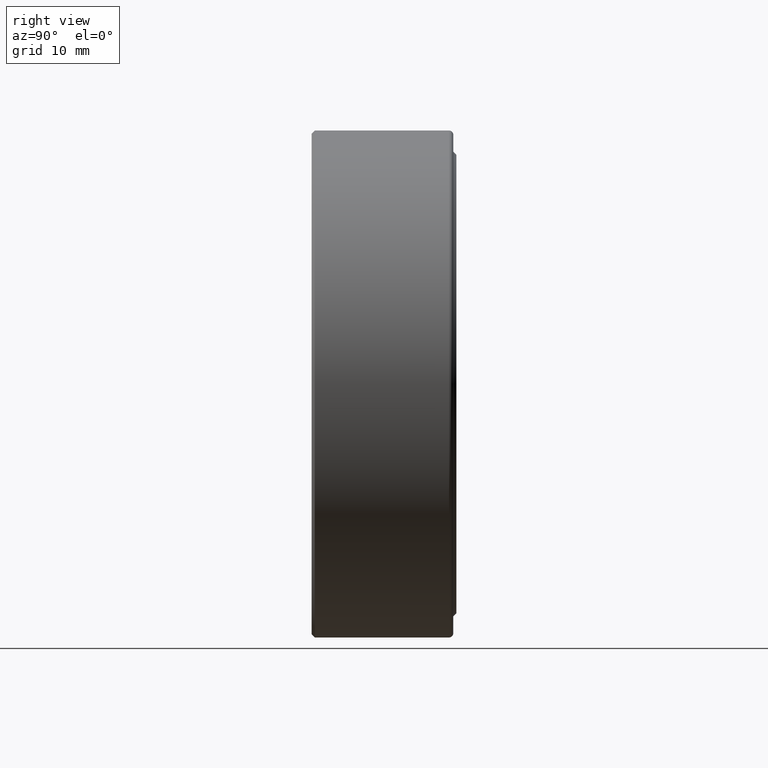
[diagram: clean part render]
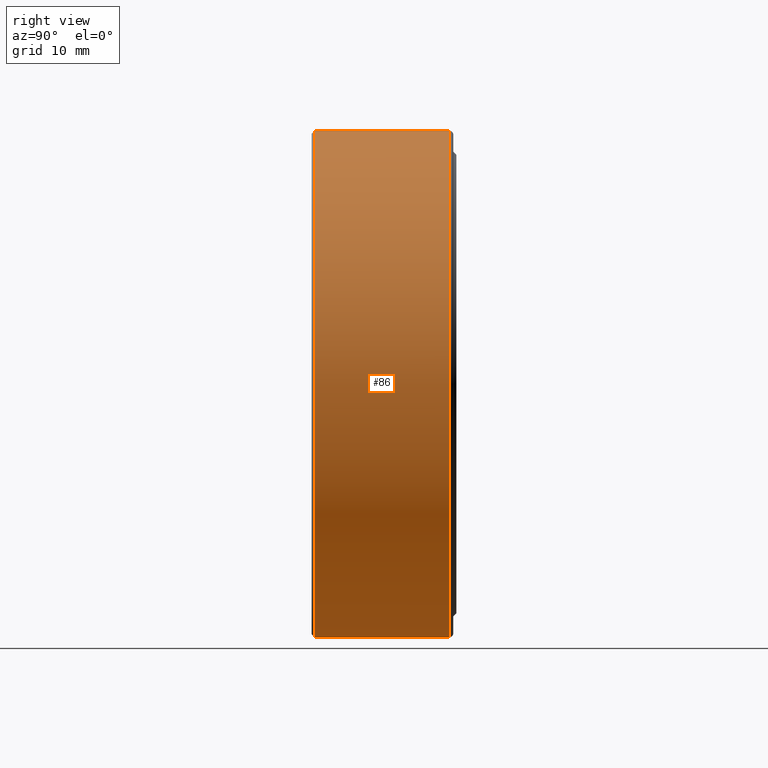
[diagram: same view with one face highlighted and labeled with its STEP entity id]
A machine part, right view. The second image highlights one B-rep face of the part: STEP entity #86.
In plain terms, the highlighted cylindrical surface (bore or boss wall) has radius 30.5594 mm, axis along (-0, 1, -0).
Its self-contained STEP definition (entity closure, byte-faithful):
#34 = EDGE_LOOP ( 'NONE', ( #174 ) ) ;
#54 = CIRCLE ( 'NONE', #492, 1.203125000000000000 ) ;
#81 = DIRECTION ( 'NONE',  ( -0.0000000000000000000, 1.000000000000000000, -0.0000000000000000000 ) ) ;
#85 = CARTESIAN_POINT ( 'NONE',  ( 0.0000000000000000000, 0.6524999999999997500, 0.0000000000000000000 ) ) ;
#86 = ADVANCED_FACE ( 'NONE', ( #432, #362 ), #92, .T. ) ;
#92 = CYLINDRICAL_SURFACE ( 'NONE', #314, 1.203125000000000000 ) ;
#164 = DIRECTION ( 'NONE',  ( 0.0000000000000000000, 0.0000000000000000000, 1.000000000000000000 ) ) ;
#174 = ORIENTED_EDGE ( 'NONE', *, *, #393, .T. ) ;
#180 = CARTESIAN_POINT ( 'NONE',  ( 0.0000000000000000000, 0.01499999999999997700, 0.0000000000000000000 ) ) ;
#198 = CARTESIAN_POINT ( 'NONE',  ( 0.0000000000000000000, 0.6524999999999997500, 1.203125000000000000 ) ) ;
#230 = ORIENTED_EDGE ( 'NONE', *, *, #333, .F. ) ;
#266 = DIRECTION ( 'NONE',  ( -0.0000000000000000000, 1.000000000000000000, -0.0000000000000000000 ) ) ;
#269 = DIRECTION ( 'NONE',  ( 0.0000000000000000000, 0.0000000000000000000, 1.000000000000000000 ) ) ;
#270 = AXIS2_PLACEMENT_3D ( 'NONE', #180, #81, #418 ) ;
#279 = DIRECTION ( 'NONE',  ( -0.0000000000000000000, 1.000000000000000000, -0.0000000000000000000 ) ) ;
#314 = AXIS2_PLACEMENT_3D ( 'NONE', #385, #279, #164 ) ;
#333 = EDGE_CURVE ( 'NONE', #518, #518, #54, .T. ) ;
#335 = EDGE_LOOP ( 'NONE', ( #230 ) ) ;
#342 = CIRCLE ( 'NONE', #270, 1.203125000000000000 ) ;
#362 = FACE_OUTER_BOUND ( 'NONE', #34, .T. ) ;
#385 = CARTESIAN_POINT ( 'NONE',  ( 0.0000000000000000000, 0.0000000000000000000, 0.0000000000000000000 ) ) ;
#393 = EDGE_CURVE ( 'NONE', #437, #437, #342, .T. ) ;
#394 = CARTESIAN_POINT ( 'NONE',  ( 0.0000000000000000000, 0.01499999999999997700, 1.203125000000000000 ) ) ;
#418 = DIRECTION ( 'NONE',  ( 0.0000000000000000000, 0.0000000000000000000, 1.000000000000000000 ) ) ;
#432 = FACE_OUTER_BOUND ( 'NONE', #335, .T. ) ;
#437 = VERTEX_POINT ( 'NONE', #394 ) ;
#492 = AXIS2_PLACEMENT_3D ( 'NONE', #85, #266, #269 ) ;
#518 = VERTEX_POINT ( 'NONE', #198 ) ;